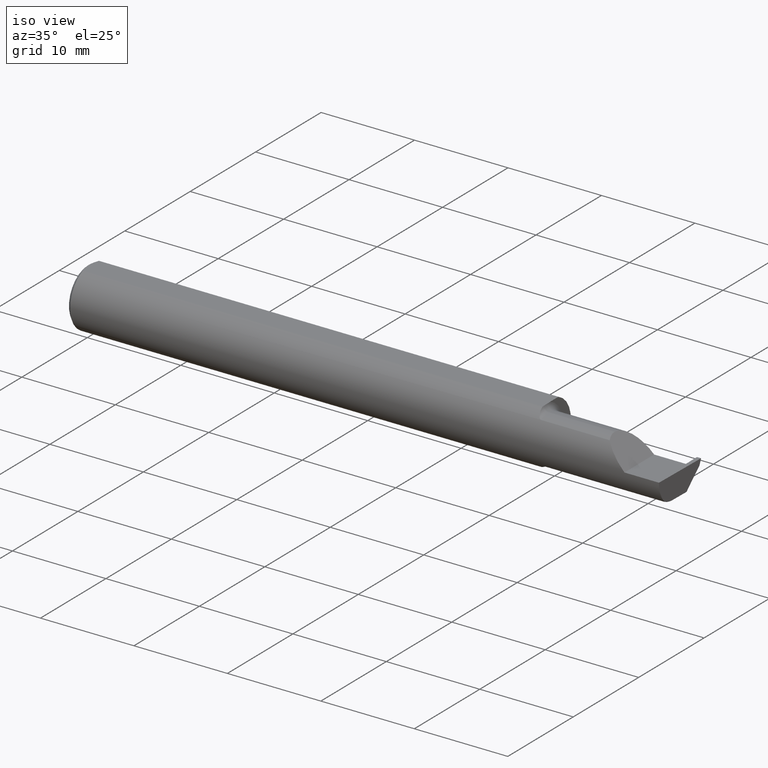
[diagram: clean part render]
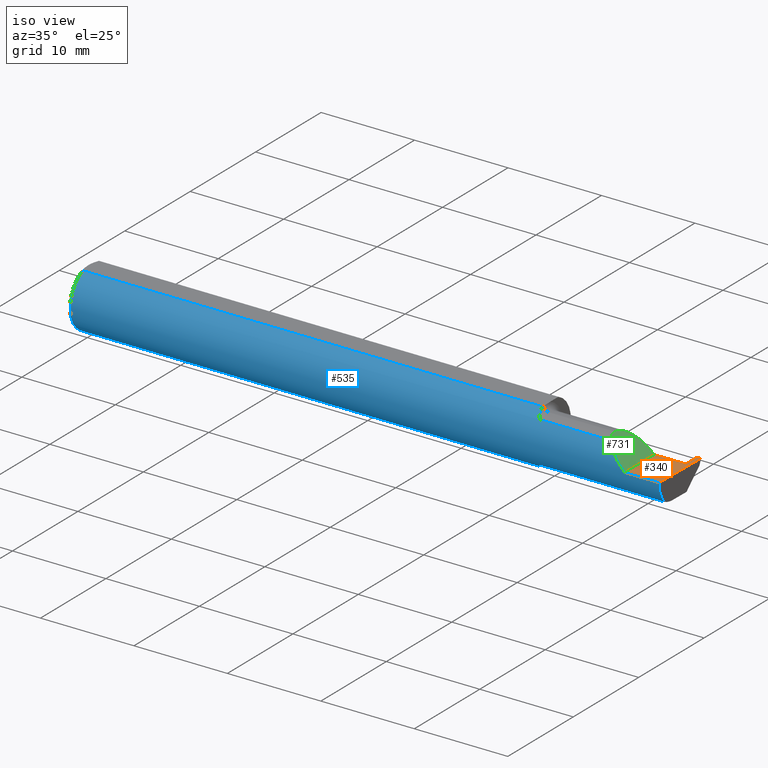
[diagram: same view with three faces highlighted in distinct colors, each labeled with its STEP entity id]
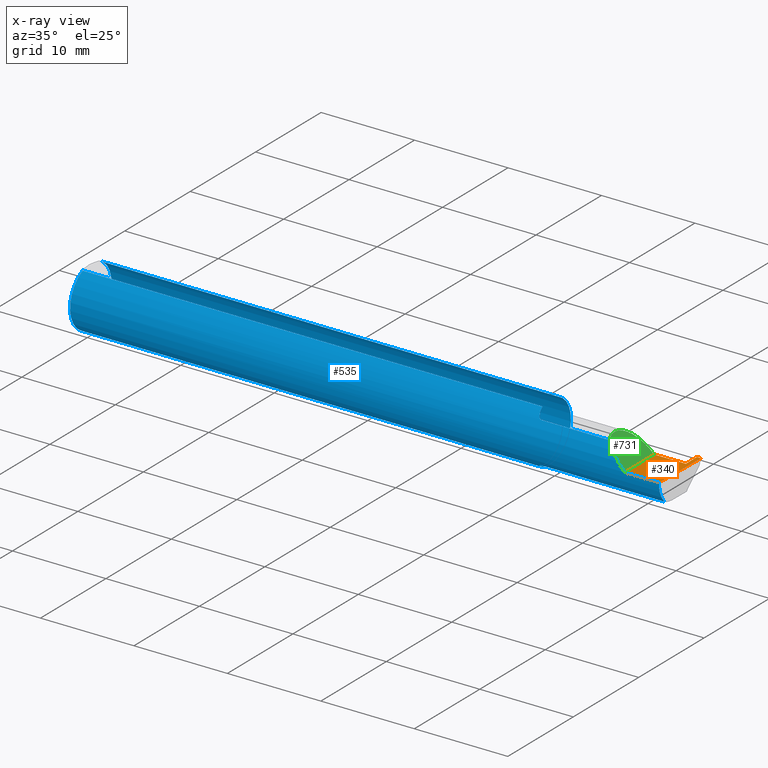
[diagram: x-ray of the same camera — body ghosted, the three highlighted faces saturated]
A machine part, iso view with three faces highlighted in distinct colors.
The next image is the same camera in x-ray (body ghosted, the three faces saturated) — at least one of them is partly hidden behind the body in this view.
Their STEP definitions:

[orange] entity #340 — the highlighted planar face has unit normal (-0, 0, -1).
#4 = LINE ( 'NONE', #171, #613 ) ;
#7 = EDGE_CURVE ( 'NONE', #627, #646, #183, .T. ) ;
#15 = VECTOR ( 'NONE', #325, 39.37007874015748143 ) ;
#20 = DIRECTION ( 'NONE',  ( 1.000000000000000000, 0.000000000000000000, 0.000000000000000000 ) ) ;
#36 = ORIENTED_EDGE ( 'NONE', *, *, #263, .T. ) ;
#44 = CARTESIAN_POINT ( 'NONE',  ( 2.483684773821554170, 0.05414999999999999675, 9.990194758399502864E-19 ) ) ;
#55 = ORIENTED_EDGE ( 'NONE', *, *, #322, .F. ) ;
#60 = VERTEX_POINT ( 'NONE', #44 ) ;
#65 = LINE ( 'NONE', #425, #363 ) ;
#70 = DIRECTION ( 'NONE',  ( 0.01744642479411244104, 0.9998477995484630343, -2.135106780035405654E-18 ) ) ;
#116 = EDGE_LOOP ( 'NONE', ( #256, #744, #55, #36, #479, #532, #634 ) ) ;
#121 = VECTOR ( 'NONE', #20, 39.37007874015748143 ) ;
#125 = VERTEX_POINT ( 'NONE', #264 ) ;
#127 = LINE ( 'NONE', #464, #274 ) ;
#156 = LINE ( 'NONE', #698, #523 ) ;
#157 = EDGE_CURVE ( 'NONE', #318, #627, #156, .T. ) ;
#158 = CARTESIAN_POINT ( 'NONE',  ( 2.350000000000000089, -0.1248500000000000026, 1.836970198721028825E-17 ) ) ;
#171 = CARTESIAN_POINT ( 'NONE',  ( 2.488116473413796825, -0.2002070484001042538, 1.455312279637640045E-18 ) ) ;
#183 = LINE ( 'NONE', #426, #15 ) ;
#195 = AXIS2_PLACEMENT_3D ( 'NONE', #377, #630, #435 ) ;
#247 = VECTOR ( 'NONE', #557, 39.37007874015748143 ) ;
#256 = ORIENTED_EDGE ( 'NONE', *, *, #157, .F. ) ;
#263 = EDGE_CURVE ( 'NONE', #125, #60, #4, .T. ) ;
#264 = CARTESIAN_POINT ( 'NONE',  ( 2.482499999999999929, 0.1221499999999999808, -3.306546357697866753E-19 ) ) ;
#274 = VECTOR ( 'NONE', #70, 39.37007874015747433 ) ;
#300 = LINE ( 'NONE', #620, #247 ) ;
#313 = EDGE_CURVE ( 'NONE', #646, #545, #747, .T. ) ;
#317 = PLANE ( 'NONE',  #195 ) ;
#318 = VERTEX_POINT ( 'NONE', #495 ) ;
#322 = EDGE_CURVE ( 'NONE', #125, #691, #300, .T. ) ;
#325 = DIRECTION ( 'NONE',  ( -0.000000000000000000, 1.000000000000000000, -0.000000000000000000 ) ) ;
#340 = ADVANCED_FACE ( 'NONE', ( #752 ), #317, .F. ) ;
#344 = DIRECTION ( 'NONE',  ( 0.01742050049977531337, -0.9998482515673753346, -2.130797594924656863E-18 ) ) ;
#363 = VECTOR ( 'NONE', #561, 39.37007874015748143 ) ;
#369 = CARTESIAN_POINT ( 'NONE',  ( 2.350000000000000089, 0.05414999999999985103, 1.836970198721028825E-17 ) ) ;
#377 = CARTESIAN_POINT ( 'NONE',  ( 2.500000000000000000, -0.2000000000000000111, 0.000000000000000000 ) ) ;
#380 = EDGE_CURVE ( 'NONE', #60, #545, #65, .T. ) ;
#425 = CARTESIAN_POINT ( 'NONE',  ( 2.499999999999999112, 0.05415000000000008695, 1.552462237965206545E-31 ) ) ;
#426 = CARTESIAN_POINT ( 'NONE',  ( 2.350000000000000089, -0.2000000000000000111, 1.836970198721028825E-17 ) ) ;
#435 = DIRECTION ( 'NONE',  ( -1.000000000000000000, 0.000000000000000000, 1.224646799147352221E-16 ) ) ;
#464 = CARTESIAN_POINT ( 'NONE',  ( 2.494380489674781209, -0.1999019447116721915, 6.881915332554697616E-19 ) ) ;
#479 = ORIENTED_EDGE ( 'NONE', *, *, #380, .T. ) ;
#495 = CARTESIAN_POINT ( 'NONE',  ( 2.495690077103728921, -0.1248499999950964945, 8.800986592364463999E-18 ) ) ;
#523 = VECTOR ( 'NONE', #583, 39.37007874015748143 ) ;
#532 = ORIENTED_EDGE ( 'NONE', *, *, #313, .F. ) ;
#545 = VERTEX_POINT ( 'NONE', #573 ) ;
#557 = DIRECTION ( 'NONE',  ( 1.000000000000000000, -0.000000000000000000, -0.000000000000000000 ) ) ;
#561 = DIRECTION ( 'NONE',  ( -1.000000000000000000, -4.987926892584526391E-15, 1.224646799147352221E-16 ) ) ;
#573 = CARTESIAN_POINT ( 'NONE',  ( 2.482499999999999929, 0.05414999999999997593, 6.735572271217495526E-17 ) ) ;
#583 = DIRECTION ( 'NONE',  ( -1.000000000000000000, -0.000000000000000000, -0.000000000000000000 ) ) ;
#613 = VECTOR ( 'NONE', #344, 39.37007874015748143 ) ;
#614 = CARTESIAN_POINT ( 'NONE',  ( 1.949999999999999956, 0.05414999999999996899, 6.735557395310438818E-17 ) ) ;
#620 = CARTESIAN_POINT ( 'NONE',  ( 2.399999999999999911, 0.1221499999999999808, -3.306546357697866753E-19 ) ) ;
#627 = VERTEX_POINT ( 'NONE', #158 ) ;
#630 = DIRECTION ( 'NONE',  ( -1.224646799147352221E-16, 0.000000000000000000, -1.000000000000000000 ) ) ;
#634 = ORIENTED_EDGE ( 'NONE', *, *, #7, .F. ) ;
#646 = VERTEX_POINT ( 'NONE', #369 ) ;
#669 = CARTESIAN_POINT ( 'NONE',  ( 2.500000000000000000, 0.1221500000000000224, 1.614031285319217924E-16 ) ) ;
#691 = VERTEX_POINT ( 'NONE', #669 ) ;
#698 = CARTESIAN_POINT ( 'NONE',  ( 3.749399456654637998E-32, -0.1248500000000000026, 3.061616997868380676E-16 ) ) ;
#716 = EDGE_CURVE ( 'NONE', #318, #691, #127, .T. ) ;
#744 = ORIENTED_EDGE ( 'NONE', *, *, #716, .T. ) ;
#747 = LINE ( 'NONE', #614, #121 ) ;
#752 = FACE_OUTER_BOUND ( 'NONE', #116, .T. ) ;

[blue] entity #535 — the highlighted cylindrical surface (edge-blend (fillet) strip) has radius 3.1712 mm, axis along (-1, -0, -0).
#13 = ORIENTED_EDGE ( 'NONE', *, *, #558, .F. ) ;
#14 = CARTESIAN_POINT ( 'NONE',  ( 2.317406910344188997, -0.1248500000000000165, 0.03259308965581150103 ) ) ;
#21 = VERTEX_POINT ( 'NONE', #766 ) ;
#28 = CARTESIAN_POINT ( 'NONE',  ( 1.950756598855983848, -0.04385000000000000009, -0.1168961077196328385 ) ) ;
#34 = DIRECTION ( 'NONE',  ( 0.000000000000000000, 0.000000000000000000, 1.000000000000000000 ) ) ;
#38 = CARTESIAN_POINT ( 'NONE',  ( 1.950000000000000178, 0.000000000000000000, 0.000000000000000000 ) ) ;
#40 = VECTOR ( 'NONE', #451, 39.37007874015748143 ) ;
#46 = CARTESIAN_POINT ( 'NONE',  ( 1.951929090759343399, -0.05370719728932710907, -0.1128289886859672325 ) ) ;
#50 = CARTESIAN_POINT ( 'NONE',  ( 2.494256244271086054, -0.1126860773865890480, -0.06285177167860768466 ) ) ;
#54 = CIRCLE ( 'NONE', #226, 0.1248500000000000026 ) ;
#73 = ORIENTED_EDGE ( 'NONE', *, *, #219, .T. ) ;
#85 = EDGE_CURVE ( 'NONE', #463, #408, #741, .T. ) ;
#104 = EDGE_CURVE ( 'NONE', #326, #418, #211, .T. ) ;
#111 = VECTOR ( 'NONE', #444, 39.37007874015748143 ) ;
#115 = CARTESIAN_POINT ( 'NONE',  ( 1.953850144156349167, -0.06295012366509131208, -0.1079450122012245994 ) ) ;
#129 = EDGE_CURVE ( 'NONE', #385, #318, #776, .T. ) ;
#134 = CARTESIAN_POINT ( 'NONE',  ( 2.287163018370355072, -0.1127002472623170326, 0.06283698162964523881 ) ) ;
#137 = LINE ( 'NONE', #742, #575 ) ;
#140 = CARTESIAN_POINT ( 'NONE',  ( 1.952489051389808994, -0.05793447593675042639, 0.1110239341513664241 ) ) ;
#144 = DIRECTION ( 'NONE',  ( -1.000000000000000000, -0.000000000000000000, -0.000000000000000000 ) ) ;
#150 = ORIENTED_EDGE ( 'NONE', *, *, #486, .F. ) ;
#151 = EDGE_CURVE ( 'NONE', #588, #353, #304, .T. ) ;
#155 = DIRECTION ( 'NONE',  ( 1.000000000000000000, 0.000000000000000000, 0.000000000000000000 ) ) ;
#156 = LINE ( 'NONE', #698, #523 ) ;
#157 = EDGE_CURVE ( 'NONE', #318, #627, #156, .T. ) ;
#158 = CARTESIAN_POINT ( 'NONE',  ( 2.350000000000000089, -0.1248500000000000026, 1.836970198721028825E-17 ) ) ;
#165 = CARTESIAN_POINT ( 'NONE',  ( 2.494835769263151537, -0.1248351010429638169, -0.03262966116142150541 ) ) ;
#175 = CARTESIAN_POINT ( 'NONE',  ( 1.972259638933031578, -0.09015216647662446792, -0.08637192471845803188 ) ) ;
#184 = CARTESIAN_POINT ( 'NONE',  ( 0.01499999999999999944, 0.000000000000000000, 0.000000000000000000 ) ) ;
#199 = CARTESIAN_POINT ( 'NONE',  ( 1.974999999999999867, -0.09015216647662489813, 0.08637192471845762942 ) ) ;
#211 = LINE ( 'NONE', #216, #40 ) ;
#216 = CARTESIAN_POINT ( 'NONE',  ( 2.228750000000000231, -0.09015216647662485649, -0.08637192471845764330 ) ) ;
#219 = EDGE_CURVE ( 'NONE', #326, #385, #360, .T. ) ;
#220 = CARTESIAN_POINT ( 'NONE',  ( 1.950756598855983848, -0.04385000000000000009, -0.1168961077196328385 ) ) ;
#221 = CARTESIAN_POINT ( 'NONE',  ( 2.493072779947982820, -0.1248043149033065263, -0.09996577117162364079 ) ) ;
#226 = AXIS2_PLACEMENT_3D ( 'NONE', #184, #616, #611 ) ;
#241 = CARTESIAN_POINT ( 'NONE',  ( 1.950000000000000178, -0.02715330672748003313, -0.1218614805168695830 ) ) ;
#249 = CARTESIAN_POINT ( 'NONE',  ( 0.01499999999999999944, -0.04895916665957456698, 0.1148500000000000076 ) ) ;
#251 = CARTESIAN_POINT ( 'NONE',  ( 1.961053217927679615, -0.08094812012685127789, 0.09514231764822689286 ) ) ;
#262 = CYLINDRICAL_SURFACE ( 'NONE', #720, 0.1248500000000000026 ) ;
#273 = CARTESIAN_POINT ( 'NONE',  ( 0.000000000000000000, -0.04895916665957456698, 0.1148500000000000076 ) ) ;
#276 = ORIENTED_EDGE ( 'NONE', *, *, #755, .F. ) ;
#280 = EDGE_CURVE ( 'NONE', #418, #588, #746, .T. ) ;
#285 = CARTESIAN_POINT ( 'NONE',  ( 1.960226514481664850, -0.07966992494485836129, -0.09623747760188229583 ) ) ;
#288 = ORIENTED_EDGE ( 'NONE', *, *, #85, .F. ) ;
#301 = VERTEX_POINT ( 'NONE', #780 ) ;
#304 = B_SPLINE_CURVE_WITH_KNOTS ( 'NONE', 3,
 ( #28, #402, #708, #702 ),
 .UNSPECIFIED., .F., .F.,
 ( 4, 4 ),
 ( 0.001640801893433568772, 0.002088276671954482962 ),
 .UNSPECIFIED. ) ;
#314 = VERTEX_POINT ( 'NONE', #370 ) ;
#318 = VERTEX_POINT ( 'NONE', #495 ) ;
#319 = CARTESIAN_POINT ( 'NONE',  ( 0.000000000000000000, 0.000000000000000000, 0.000000000000000000 ) ) ;
#326 = VERTEX_POINT ( 'NONE', #677 ) ;
#353 = VERTEX_POINT ( 'NONE', #241 ) ;
#357 = CARTESIAN_POINT ( 'NONE',  ( 1.950756598855983848, -0.04385000000000000009, -0.1168961077196328385 ) ) ;
#360 =( BOUNDED_CURVE ( )  B_SPLINE_CURVE ( 3, ( #487, #50, #165, #607 ),
 .UNSPECIFIED., .F., .F. ) 
 B_SPLINE_CURVE_WITH_KNOTS ( ( 4, 4 ),
 ( 0.2190942387645745393, 0.9826237902197102470 ),
 .UNSPECIFIED. ) 
 CURVE ( )  GEOMETRIC_REPRESENTATION_ITEM ( )  RATIONAL_B_SPLINE_CURVE ( ( 1.000000000000000000, 0.9520057322288819623, 0.9520057322288819623, 1.000000000000000000 ) ) 
 REPRESENTATION_ITEM ( '' )  );
#361 = DIRECTION ( 'NONE',  ( 1.000000000000000000, 0.000000000000000000, 0.000000000000000000 ) ) ;
#370 = CARTESIAN_POINT ( 'NONE',  ( 1.974999999999999867, -0.09015216647662489813, 0.08637192471845762942 ) ) ;
#378 = ORIENTED_EDGE ( 'NONE', *, *, #689, .F. ) ;
#379 = CARTESIAN_POINT ( 'NONE',  ( 1.970195245915135729, -0.08928014009840837262, 0.08728826463238019417 ) ) ;
#383 = DIRECTION ( 'NONE',  ( -1.000000000000000000, -0.000000000000000000, -0.000000000000000000 ) ) ;
#384 = DIRECTION ( 'NONE',  ( -1.000000000000000000, -0.000000000000000000, -0.000000000000000000 ) ) ;
#385 = VERTEX_POINT ( 'NONE', #671 ) ;
#386 = AXIS2_PLACEMENT_3D ( 'NONE', #38, #155, #450 ) ;
#390 = DIRECTION ( 'NONE',  ( 0.000000000000000000, 0.000000000000000000, 1.000000000000000000 ) ) ;
#396 =( BOUNDED_CURVE ( )  B_SPLINE_CURVE ( 3, ( #498, #14, #134, #568 ),
 .UNSPECIFIED., .F., .F. ) 
 B_SPLINE_CURVE_WITH_KNOTS ( ( 4, 4 ),
 ( 4.712388980384690562, 5.476375539154171967 ),
 .UNSPECIFIED. ) 
 CURVE ( )  GEOMETRIC_REPRESENTATION_ITEM ( )  RATIONAL_B_SPLINE_CURVE ( ( 1.000000000000000000, 0.9519489620492036508, 0.9519489620492036508, 1.000000000000000000 ) ) 
 REPRESENTATION_ITEM ( '' )  );
#402 = CARTESIAN_POINT ( 'NONE',  ( 1.950242610568498236, -0.03840785182185593727, -0.1189375631818110762 ) ) ;
#408 = VERTEX_POINT ( 'NONE', #249 ) ;
#416 = ORIENTED_EDGE ( 'NONE', *, *, #504, .F. ) ;
#417 = CARTESIAN_POINT ( 'NONE',  ( 1.964311064734461709, -0.08485061678078632819, -0.09161469295857083139 ) ) ;
#418 = VERTEX_POINT ( 'NONE', #618 ) ;
#436 = ORIENTED_EDGE ( 'NONE', *, *, #157, .T. ) ;
#440 = LINE ( 'NONE', #273, #111 ) ;
#444 = DIRECTION ( 'NONE',  ( 1.000000000000000000, 0.000000000000000000, 0.000000000000000000 ) ) ;
#445 = EDGE_CURVE ( 'NONE', #314, #543, #137, .T. ) ;
#450 = DIRECTION ( 'NONE',  ( 0.000000000000000000, 0.000000000000000000, -1.000000000000000000 ) ) ;
#451 = DIRECTION ( 'NONE',  ( -1.000000000000000000, -0.000000000000000000, -0.000000000000000000 ) ) ;
#462 = DIRECTION ( 'NONE',  ( 0.02617296143184117893, -0.0004568507411563391195, 0.9996573249755575929 ) ) ;
#463 = VERTEX_POINT ( 'NONE', #586 ) ;
#466 = EDGE_LOOP ( 'NONE', ( #621, #73, #709, #436, #597, #608, #276, #416, #288, #378, #13, #150, #789, #554 ) ) ;
#481 = VECTOR ( 'NONE', #462, 39.37007874015748854 ) ;
#486 = EDGE_CURVE ( 'NONE', #353, #559, #539, .T. ) ;
#487 = CARTESIAN_POINT ( 'NONE',  ( 2.494033449660866708, -0.09015216647662485649, -0.08637192471845764330 ) ) ;
#495 = CARTESIAN_POINT ( 'NONE',  ( 2.495690077103728921, -0.1248499999950964945, 8.800986592364463999E-18 ) ) ;
#497 = VECTOR ( 'NONE', #383, 39.37007874015748143 ) ;
#498 = CARTESIAN_POINT ( 'NONE',  ( 2.350000000000000089, -0.1248500000000000026, 1.836970198721028825E-17 ) ) ;
#504 = EDGE_CURVE ( 'NONE', #408, #21, #440, .T. ) ;
#519 = CARTESIAN_POINT ( 'NONE',  ( 0.01499999999999999944, 0.000000000000000000, 0.000000000000000000 ) ) ;
#523 = VECTOR ( 'NONE', #583, 39.37007874015748143 ) ;
#525 = CARTESIAN_POINT ( 'NONE',  ( 1.950000000000000178, 0.04895916665957496944, 0.1148500000000000076 ) ) ;
#534 = B_SPLINE_CURVE_WITH_KNOTS ( 'NONE', 3,
 ( #693, #140, #641, #683, #251, #686, #749, #379, #560, #199 ),
 .UNSPECIFIED., .F., .F.,
 ( 4, 2, 2, 2, 4 ),
 ( 5.065792321965575893E-07, 0.0007388407001990844169, 0.001108007760682528948, 0.001292591290924245901, 0.001477174821165962854 ),
 .UNSPECIFIED. ) ;
#535 = ADVANCED_FACE ( 'NONE', ( #765 ), #262, .T. ) ;
#539 = CIRCLE ( 'NONE', #386, 0.1248500000000000026 ) ;
#542 = CARTESIAN_POINT ( 'NONE',  ( 1.951227715916084238, -0.04883822427082834539, -0.1150249279297937272 ) ) ;
#543 = VERTEX_POINT ( 'NONE', #650 ) ;
#554 = ORIENTED_EDGE ( 'NONE', *, *, #280, .F. ) ;
#558 = EDGE_CURVE ( 'NONE', #559, #301, #707, .T. ) ;
#559 = VERTEX_POINT ( 'NONE', #525 ) ;
#560 = CARTESIAN_POINT ( 'NONE',  ( 1.972502509400819282, -0.09015216647698102992, 0.08637192471808595451 ) ) ;
#568 = CARTESIAN_POINT ( 'NONE',  ( 2.263628075281542973, -0.09015216647662456506, 0.08637192471845794861 ) ) ;
#575 = VECTOR ( 'NONE', #361, 39.37007874015748143 ) ;
#583 = DIRECTION ( 'NONE',  ( -1.000000000000000000, -0.000000000000000000, -0.000000000000000000 ) ) ;
#586 = CARTESIAN_POINT ( 'NONE',  ( 0.01499999999999999944, 0.000000000000000000, -0.1248500000000000026 ) ) ;
#588 = VERTEX_POINT ( 'NONE', #220 ) ;
#596 = CARTESIAN_POINT ( 'NONE',  ( 1.955064983703084236, -0.06736177101644111320, -0.1052426774175050650 ) ) ;
#597 = ORIENTED_EDGE ( 'NONE', *, *, #758, .T. ) ;
#607 = CARTESIAN_POINT ( 'NONE',  ( 2.495688583004118666, -0.1248499869621840785, -5.705736120965713455E-05 ) ) ;
#608 = ORIENTED_EDGE ( 'NONE', *, *, #445, .F. ) ;
#611 = DIRECTION ( 'NONE',  ( 0.000000000000000000, 0.000000000000000000, 1.000000000000000000 ) ) ;
#616 = DIRECTION ( 'NONE',  ( -1.000000000000000000, -0.000000000000000000, -0.000000000000000000 ) ) ;
#618 = CARTESIAN_POINT ( 'NONE',  ( 1.974999999999999867, -0.09015216647662482874, -0.08637192471845765718 ) ) ;
#621 = ORIENTED_EDGE ( 'NONE', *, *, #104, .F. ) ;
#627 = VERTEX_POINT ( 'NONE', #158 ) ;
#641 = CARTESIAN_POINT ( 'NONE',  ( 1.954335346929613415, -0.06618116991695116580, 0.1062694618620779047 ) ) ;
#650 = CARTESIAN_POINT ( 'NONE',  ( 2.263628075281542973, -0.09015216647662456506, 0.08637192471845794861 ) ) ;
#667 = CARTESIAN_POINT ( 'NONE',  ( 1.958278800716857226, -0.07573621487658310780, -0.09938639293507188499 ) ) ;
#671 = CARTESIAN_POINT ( 'NONE',  ( 2.495688583004118666, -0.1248499869621840785, -5.705736120965713455E-05 ) ) ;
#677 = CARTESIAN_POINT ( 'NONE',  ( 2.494033449660866708, -0.09015216647662485649, -0.08637192471845764330 ) ) ;
#683 = CARTESIAN_POINT ( 'NONE',  ( 1.959117122045869630, -0.07738857672816135125, 0.09808127502738497872 ) ) ;
#686 = CARTESIAN_POINT ( 'NONE',  ( 1.964990549600693637, -0.08554147198584279022, 0.09096407607062298450 ) ) ;
#689 = EDGE_CURVE ( 'NONE', #301, #463, #54, .T. ) ;
#693 = CARTESIAN_POINT ( 'NONE',  ( 1.951326891871145719, -0.04895916665873453755, 0.1148500000000000076 ) ) ;
#697 = CARTESIAN_POINT ( 'NONE',  ( 0.000000000000000000, 0.04895916665957456698, 0.1148500000000000076 ) ) ;
#698 = CARTESIAN_POINT ( 'NONE',  ( 3.749399456654637998E-32, -0.1248500000000000026, 3.061616997868380676E-16 ) ) ;
#702 = CARTESIAN_POINT ( 'NONE',  ( 1.950000000000000178, -0.02715330672748003313, -0.1218614805168695830 ) ) ;
#707 = LINE ( 'NONE', #697, #497 ) ;
#708 = CARTESIAN_POINT ( 'NONE',  ( 1.949999999999999956, -0.03284222813693379178, -0.1205938689030582739 ) ) ;
#709 = ORIENTED_EDGE ( 'NONE', *, *, #129, .T. ) ;
#720 = AXIS2_PLACEMENT_3D ( 'NONE', #319, #144, #34 ) ;
#723 = CARTESIAN_POINT ( 'NONE',  ( 1.974999999999999867, -0.09015216647662482874, -0.08637192471845765718 ) ) ;
#725 = CARTESIAN_POINT ( 'NONE',  ( 1.965875432832430825, -0.08647060418110405489, -0.09007670266896504463 ) ) ;
#741 = CIRCLE ( 'NONE', #767, 0.1248500000000000026 ) ;
#742 = CARTESIAN_POINT ( 'NONE',  ( 2.228750000000000231, -0.09015216647662485649, 0.08637192471845764330 ) ) ;
#746 = B_SPLINE_CURVE_WITH_KNOTS ( 'NONE', 3,
 ( #723, #175, #785, #725, #417, #285, #667, #596, #115, #46, #542, #357 ),
 .UNSPECIFIED., .F., .F.,
 ( 4, 2, 2, 2, 2, 4 ),
 ( 1.963988863383734834E-07, 0.0002052720857047462741, 0.0004103477725231542044, 0.0008204991461599594939, 0.001230650519796764025, 0.001640801893433568772 ),
 .UNSPECIFIED. ) ;
#749 = CARTESIAN_POINT ( 'NONE',  ( 1.966486677516400938, -0.08696861555842334834, 0.08959154238194037834 ) ) ;
#755 = EDGE_CURVE ( 'NONE', #21, #314, #534, .T. ) ;
#758 = EDGE_CURVE ( 'NONE', #627, #543, #396, .T. ) ;
#765 = FACE_OUTER_BOUND ( 'NONE', #466, .T. ) ;
#766 = CARTESIAN_POINT ( 'NONE',  ( 1.951326891871145719, -0.04895916665873453755, 0.1148500000000000076 ) ) ;
#767 = AXIS2_PLACEMENT_3D ( 'NONE', #519, #384, #390 ) ;
#776 = LINE ( 'NONE', #221, #481 ) ;
#780 = CARTESIAN_POINT ( 'NONE',  ( 0.01499999999999987454, 0.04895916665957496944, 0.1148500000000000076 ) ) ;
#785 = CARTESIAN_POINT ( 'NONE',  ( 1.969784064659362954, -0.08911389870154515225, -0.08746251087962811366 ) ) ;
#789 = ORIENTED_EDGE ( 'NONE', *, *, #151, .F. ) ;

[green] entity #731 — the highlighted planar face has unit normal (-0.7071, 0, -0.7071).
#7 = EDGE_CURVE ( 'NONE', #627, #646, #183, .T. ) ;
#14 = CARTESIAN_POINT ( 'NONE',  ( 2.317406910344188997, -0.1248500000000000165, 0.03259308965581150103 ) ) ;
#15 = VECTOR ( 'NONE', #325, 39.37007874015748143 ) ;
#53 = AXIS2_PLACEMENT_3D ( 'NONE', #501, #437, #90 ) ;
#88 = CARTESIAN_POINT ( 'NONE',  ( 2.255955442396119004, -0.07583965973232800750, 0.09404455760388212571 ) ) ;
#90 = DIRECTION ( 'NONE',  ( -0.7071067811865459074, 0.000000000000000000, 0.7071067811865492381 ) ) ;
#100 = EDGE_CURVE ( 'NONE', #543, #753, #422, .T. ) ;
#134 = CARTESIAN_POINT ( 'NONE',  ( 2.287163018370355072, -0.1127002472623170326, 0.06283698162964523881 ) ) ;
#158 = CARTESIAN_POINT ( 'NONE',  ( 2.350000000000000089, -0.1248500000000000026, 1.836970198721028825E-17 ) ) ;
#183 = LINE ( 'NONE', #426, #15 ) ;
#231 = ORIENTED_EDGE ( 'NONE', *, *, #758, .F. ) ;
#279 =( BOUNDED_CURVE ( )  B_SPLINE_CURVE ( 3, ( #284, #730, #306, #556 ),
 .UNSPECIFIED., .F., .T. ) 
 B_SPLINE_CURVE_WITH_KNOTS ( ( 4, 4 ),
 ( 0.000000000000000000, 1.570796326794896558 ),
 .UNSPECIFIED. ) 
 CURVE ( )  GEOMETRIC_REPRESENTATION_ITEM ( )  RATIONAL_B_SPLINE_CURVE ( ( 1.000000000000000000, 0.8047378541243649375, 0.8047378541243649375, 1.000000000000000000 ) ) 
 REPRESENTATION_ITEM ( '' )  );
#284 = CARTESIAN_POINT ( 'NONE',  ( 2.252000000000000668, -0.04385000000000001397, 0.09799999999999998990 ) ) ;
#306 = CARTESIAN_POINT ( 'NONE',  ( 2.292592929112563738, 0.05415000000000001062, 0.05740707088743667724 ) ) ;
#321 = CARTESIAN_POINT ( 'NONE',  ( 2.252000000000000668, -0.04385000000000001397, 0.09799999999999998990 ) ) ;
#325 = DIRECTION ( 'NONE',  ( -0.000000000000000000, 1.000000000000000000, -0.000000000000000000 ) ) ;
#335 = EDGE_LOOP ( 'NONE', ( #640, #231, #777, #769 ) ) ;
#369 = CARTESIAN_POINT ( 'NONE',  ( 2.350000000000000089, 0.05414999999999985103, 1.836970198721028825E-17 ) ) ;
#396 =( BOUNDED_CURVE ( )  B_SPLINE_CURVE ( 3, ( #498, #14, #134, #568 ),
 .UNSPECIFIED., .F., .F. ) 
 B_SPLINE_CURVE_WITH_KNOTS ( ( 4, 4 ),
 ( 4.712388980384690562, 5.476375539154171967 ),
 .UNSPECIFIED. ) 
 CURVE ( )  GEOMETRIC_REPRESENTATION_ITEM ( )  RATIONAL_B_SPLINE_CURVE ( ( 1.000000000000000000, 0.9519489620492036508, 0.9519489620492036508, 1.000000000000000000 ) ) 
 REPRESENTATION_ITEM ( '' )  );
#422 =( BOUNDED_CURVE ( )  B_SPLINE_CURVE ( 3, ( #530, #88, #574, #526 ),
 .UNSPECIFIED., .F., .T. ) 
 B_SPLINE_CURVE_WITH_KNOTS ( ( 4, 4 ),
 ( 5.791092865617128993, 6.283185307179586232 ),
 .UNSPECIFIED. ) 
 CURVE ( )  GEOMETRIC_REPRESENTATION_ITEM ( )  RATIONAL_B_SPLINE_CURVE ( ( 1.000000000000000000, 0.9799220177372781615, 0.9799220177372781615, 1.000000000000000000 ) ) 
 REPRESENTATION_ITEM ( '' )  );
#426 = CARTESIAN_POINT ( 'NONE',  ( 2.350000000000000089, -0.2000000000000000111, 1.836970198721028825E-17 ) ) ;
#434 = PLANE ( 'NONE',  #53 ) ;
#437 = DIRECTION ( 'NONE',  ( -0.7071067811865492381, 0.000000000000000000, -0.7071067811865459074 ) ) ;
#498 = CARTESIAN_POINT ( 'NONE',  ( 2.350000000000000089, -0.1248500000000000026, 1.836970198721028825E-17 ) ) ;
#501 = CARTESIAN_POINT ( 'NONE',  ( 2.350000000000000089, -0.2000000000000000111, 1.836970198721028825E-17 ) ) ;
#526 = CARTESIAN_POINT ( 'NONE',  ( 2.252000000000000668, -0.04385000000000001397, 0.09799999999999998990 ) ) ;
#530 = CARTESIAN_POINT ( 'NONE',  ( 2.263628075281542973, -0.09015216647662456506, 0.08637192471845794861 ) ) ;
#543 = VERTEX_POINT ( 'NONE', #650 ) ;
#556 = CARTESIAN_POINT ( 'NONE',  ( 2.350000000000000089, 0.05414999999999985103, 1.836970198721028825E-17 ) ) ;
#568 = CARTESIAN_POINT ( 'NONE',  ( 2.263628075281542973, -0.09015216647662456506, 0.08637192471845794861 ) ) ;
#574 = CARTESIAN_POINT ( 'NONE',  ( 2.252000000000000668, -0.06008937020638518284, 0.09799999999999996214 ) ) ;
#617 = EDGE_CURVE ( 'NONE', #753, #646, #279, .T. ) ;
#627 = VERTEX_POINT ( 'NONE', #158 ) ;
#635 = FACE_OUTER_BOUND ( 'NONE', #335, .T. ) ;
#640 = ORIENTED_EDGE ( 'NONE', *, *, #100, .F. ) ;
#646 = VERTEX_POINT ( 'NONE', #369 ) ;
#650 = CARTESIAN_POINT ( 'NONE',  ( 2.263628075281542973, -0.09015216647662456506, 0.08637192471845794861 ) ) ;
#730 = CARTESIAN_POINT ( 'NONE',  ( 2.252000000000000668, 0.01355707088743669450, 0.09799999999999996214 ) ) ;
#731 = ADVANCED_FACE ( 'NONE', ( #635 ), #434, .F. ) ;
#753 = VERTEX_POINT ( 'NONE', #321 ) ;
#758 = EDGE_CURVE ( 'NONE', #627, #543, #396, .T. ) ;
#769 = ORIENTED_EDGE ( 'NONE', *, *, #617, .F. ) ;
#777 = ORIENTED_EDGE ( 'NONE', *, *, #7, .T. ) ;